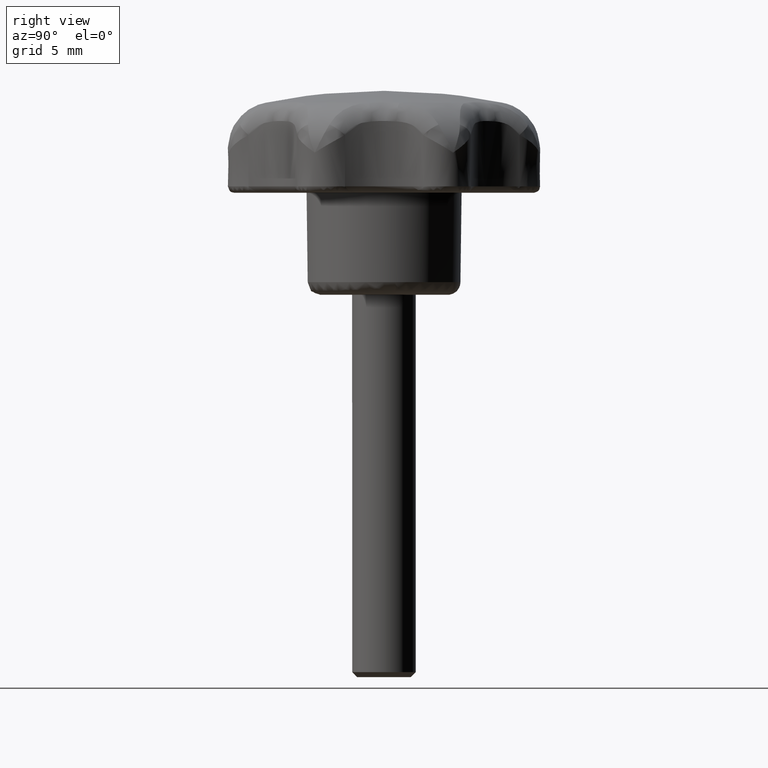
[diagram: clean part render]
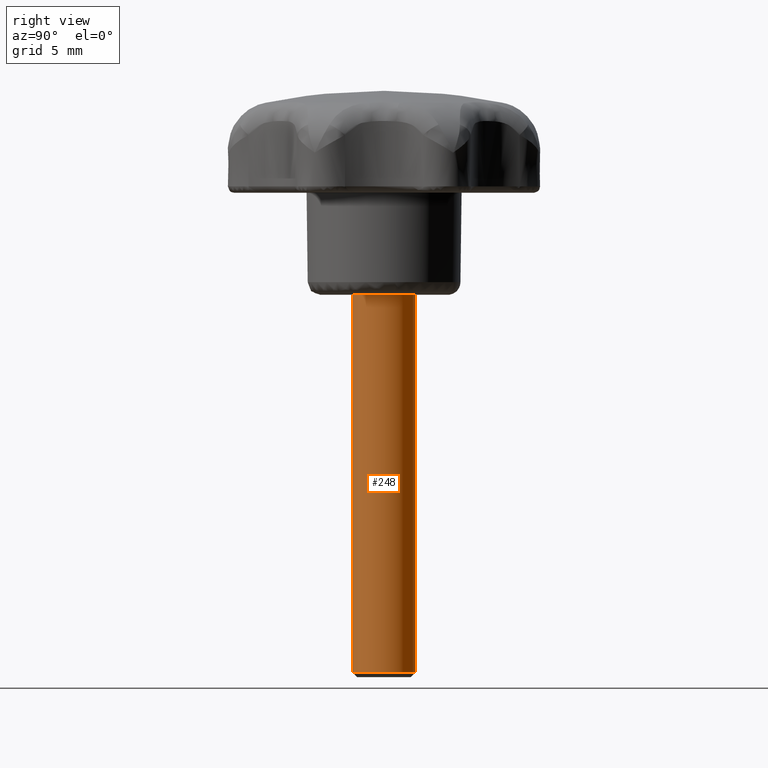
[diagram: same view with one face highlighted and labeled with its STEP entity id]
A machine part, right view. The second image highlights one B-rep face of the part: STEP entity #248.
In plain terms, the highlighted face is a freeform B-spline surface patch.
Its self-contained STEP definition (entity closure, byte-faithful):
#62=CARTESIAN_POINT('',(-0.285251661940060,-2.483672983579044,-29.600000000000001));
#63=VERTEX_POINT('',#62);
#79=CARTESIAN_POINT('',(-0.285251661869961,-2.483672983587095,1.065086E-015));
#80=VERTEX_POINT('',#79);
#81=CARTESIAN_POINT('',(-0.285251661869961,-2.483672983587095,1.065086E-015));
#82=CARTESIAN_POINT('',(-0.285251661940060,-2.483672983579044,-29.600000000000001));
#83=QUASI_UNIFORM_CURVE('',1,(#81,#82),.UNSPECIFIED.,.F.,.U.);
#84=EDGE_CURVE('',#80,#63,#83,.T.);
#101=CARTESIAN_POINT('',(-0.152621348851014,2.495336996053819,9.992007E-016));
#102=VERTEX_POINT('',#101);
#116=CARTESIAN_POINT('',(-0.174384544173516,2.493815165198688,-29.599999999987599));
#117=VERTEX_POINT('',#116);
#118=CARTESIAN_POINT('',(-0.152621348851014,2.495336996053819,9.992007E-016));
#119=CARTESIAN_POINT('',(-0.174384544173516,2.493815165198688,-29.599999999987599));
#120=QUASI_UNIFORM_CURVE('',1,(#118,#119),.UNSPECIFIED.,.F.,.U.);
#121=EDGE_CURVE('',#102,#117,#120,.T.);
#139=CARTESIAN_POINT('',(-0.211333953011323,2.491745979347514,0.740000000000000));
#140=CARTESIAN_POINT('',(-0.182121404711687,2.493532695342795,0.740000000000001));
#141=CARTESIAN_POINT('',(2.342715647217524,2.647958344891809,0.740000000000001));
#142=CARTESIAN_POINT('',(2.495336996054667,0.152621348837143,0.740000000000001));
#143=CARTESIAN_POINT('',(2.647958344891809,-2.342715647217524,0.740000000000001));
#144=CARTESIAN_POINT('',(0.152621348837143,-2.495336996054667,0.740000000000001));
#145=CARTESIAN_POINT('',(-0.066828045241367,-2.508759095986944,0.740000000000001));
#146=CARTESIAN_POINT('',(-0.305203193733537,-2.481381535534891,0.740000000000001));
#147=CARTESIAN_POINT('',(-0.325255889531770,-2.479078468730673,0.740000000000001));
#148=CARTESIAN_POINT('',(-0.211333953011323,2.491745979347514,-30.358499999999992));
#149=CARTESIAN_POINT('',(-0.182121404711687,2.493532695342795,-30.358500000000017));
#150=CARTESIAN_POINT('',(2.342715647217524,2.647958344891809,-30.358500000000006));
#151=CARTESIAN_POINT('',(2.495336996054667,0.152621348837143,-30.358500000000010));
#152=CARTESIAN_POINT('',(2.647958344891809,-2.342715647217524,-30.358500000000006));
#153=CARTESIAN_POINT('',(0.152621348837143,-2.495336996054667,-30.358500000000010));
#154=CARTESIAN_POINT('',(-0.066828045241367,-2.508759095986944,-30.358500000000003));
#155=CARTESIAN_POINT('',(-0.305203193733537,-2.481381535534891,-30.358500000000010));
#156=CARTESIAN_POINT('',(-0.325255889531770,-2.479078468730673,-30.358500000000010));
#164=(BOUNDED_SURFACE()B_SPLINE_SURFACE(2,1,((#139,#148),(#140,#149),(#141,#150),(#142,#151),(#143,#152),(#144,#153),(#145,#154),(#146,#155),(#147,#156)),.UNSPECIFIED.,.F.,.F.,.U.)B_SPLINE_SURFACE_WITH_KNOTS((3,1,2,2,1,3),(2,2),(0.0,0.069592886513969,4.211728510244918,8.353864133975868,8.850920408823583,8.894954837838011),(0.0,31.098500000000008),.UNSPECIFIED.)GEOMETRIC_REPRESENTATION_ITEM()RATIONAL_B_SPLINE_SURFACE(((1.009841920395275,1.009841920395275),(1.004920960197637,1.004920960197637),(0.707106781186548,0.707106781186548),(1.0,1.0),(0.707106781186548,0.707106781186548),(1.0,1.0),(0.964852813742386,0.964852813742386),(0.935774536891103,0.935774536891103),(0.933408121595608,0.933408121595608)))REPRESENTATION_ITEM('')SURFACE());
#165=CARTESIAN_POINT('',(0.196147739509889,-2.492293334342709,-29.599999999975211));
#166=VERTEX_POINT('',#165);
#167=CARTESIAN_POINT('',(0.196147739509888,-2.492293334342710,-29.599999999975214));
#168=CARTESIAN_POINT('',(0.098225267708378,-2.500000000000000,-29.599999999999998));
#169=CARTESIAN_POINT('',(0.0,-2.500000000000000,-29.600000000000001));
#170=CARTESIAN_POINT('',(-0.143093087653277,-2.500000000000000,-29.600000000000005));
#171=CARTESIAN_POINT('',(-0.285251661940060,-2.483672983579044,-29.599999999999994));
#179=(BOUNDED_CURVE()B_SPLINE_CURVE(2,(#167,#168,#169,#170,#171),.UNSPECIFIED.,.F.,.U.)B_SPLINE_CURVE_WITH_KNOTS((3,2,3),(0.736331300606859,0.750000000000000,0.769767755888761),.UNSPECIFIED.)CURVE()GEOMETRIC_REPRESENTATION_ITEM()RATIONAL_B_SPLINE_CURVE((0.969723356117749,0.983986122550998,1.0,0.976840633396089,0.957343736436694))REPRESENTATION_ITEM(''));
#180=EDGE_CURVE('',#166,#63,#179,.T.);
#181=ORIENTED_EDGE('',*,*,#180,.F.);
#182=CARTESIAN_POINT('',(2.500000000000000,0.0,-29.600000000000001));
#183=VERTEX_POINT('',#182);
#184=CARTESIAN_POINT('',(2.500000000000000,0.0,-29.600000000000001));
#185=CARTESIAN_POINT('',(2.500000000000000,-2.310976228795188,-29.600000000000009));
#186=CARTESIAN_POINT('',(0.196147739509889,-2.492293334342710,-29.599999999975207));
#194=(BOUNDED_CURVE()B_SPLINE_CURVE(2,(#184,#185,#186),.UNSPECIFIED.,.F.,.U.)B_SPLINE_CURVE_WITH_KNOTS((3,3),(0.500000000000000,0.736331300606860),.UNSPECIFIED.)CURVE()GEOMETRIC_REPRESENTATION_ITEM()RATIONAL_B_SPLINE_CURVE((1.0,0.723120658635548,0.969723356117750))REPRESENTATION_ITEM(''));
#195=EDGE_CURVE('',#183,#166,#194,.T.);
#196=ORIENTED_EDGE('',*,*,#195,.F.);
#197=CARTESIAN_POINT('',(-0.174384544173516,2.493815165198689,-29.599999999987602));
#198=CARTESIAN_POINT('',(-0.087295391613087,2.499906585708537,-29.599999999987801));
#199=CARTESIAN_POINT('',(0.000006416221786,2.499908243754431,-29.599999999988022));
#200=CARTESIAN_POINT('',(2.500003096081192,2.499955723976567,-29.599999999994218));
#201=CARTESIAN_POINT('',(2.500000000000000,0.0,-29.600000000000001));
#209=(BOUNDED_CURVE()B_SPLINE_CURVE(2,(#197,#198,#199,#200,#201),.UNSPECIFIED.,.F.,.U.)B_SPLINE_CURVE_WITH_KNOTS((3,2,3),(0.237829682990457,0.250000000000000,0.500000000000000),.UNSPECIFIED.)CURVE()GEOMETRIC_REPRESENTATION_ITEM()RATIONAL_B_SPLINE_CURVE((0.972871408695256,0.985741586708380,1.0,0.707106781186548,1.0))REPRESENTATION_ITEM(''));
#210=EDGE_CURVE('',#117,#183,#209,.T.);
#211=ORIENTED_EDGE('',*,*,#210,.F.);
#212=ORIENTED_EDGE('',*,*,#121,.F.);
#213=CARTESIAN_POINT('',(2.500000000000000,0.0,0.0));
#214=VERTEX_POINT('',#213);
#215=CARTESIAN_POINT('',(-0.152621348851014,2.495336996053819,9.992007E-016));
#216=CARTESIAN_POINT('',(-0.076381908260382,2.500000000000000,0.0));
#217=CARTESIAN_POINT('',(0.0,2.500000000000000,0.0));
#218=CARTESIAN_POINT('',(2.500000000000000,2.500000000000000,0.0));
#219=CARTESIAN_POINT('',(2.500000000000000,0.0,0.0));
#227=(BOUNDED_CURVE()B_SPLINE_CURVE(2,(#215,#216,#217,#218,#219),.UNSPECIFIED.,.F.,.U.)B_SPLINE_CURVE_WITH_KNOTS((3,2,3),(0.739332962240050,0.750000000000000,1.0),.UNSPECIFIED.)CURVE()GEOMETRIC_REPRESENTATION_ITEM()RATIONAL_B_SPLINE_CURVE((0.976072041669090,0.987502787901134,1.0,0.707106781186548,1.0))REPRESENTATION_ITEM(''));
#228=EDGE_CURVE('',#102,#214,#227,.T.);
#229=ORIENTED_EDGE('',*,*,#228,.T.);
#230=CARTESIAN_POINT('',(2.500000000000000,0.0,0.0));
#231=CARTESIAN_POINT('',(2.500000000000000,-2.500000000000000,0.0));
#232=CARTESIAN_POINT('',(0.0,-2.500000000000000,0.0));
#233=CARTESIAN_POINT('',(-0.143093087582480,-2.500000000000000,0.0));
#234=CARTESIAN_POINT('',(-0.285251661869961,-2.483672983587095,1.065086E-015));
#242=(BOUNDED_CURVE()B_SPLINE_CURVE(2,(#230,#231,#232,#233,#234),.UNSPECIFIED.,.F.,.U.)B_SPLINE_CURVE_WITH_KNOTS((3,2,3),(0.0,0.250000000000000,0.269767755879207),.UNSPECIFIED.)CURVE()GEOMETRIC_REPRESENTATION_ITEM()RATIONAL_B_SPLINE_CURVE((1.0,0.707106781186548,1.0,0.976840633407282,0.957343736455540))REPRESENTATION_ITEM(''));
#243=EDGE_CURVE('',#214,#80,#242,.T.);
#244=ORIENTED_EDGE('',*,*,#243,.T.);
#245=ORIENTED_EDGE('',*,*,#84,.T.);
#246=EDGE_LOOP('',(#181,#196,#211,#212,#229,#244,#245));
#247=FACE_OUTER_BOUND('',#246,.T.);
#248=ADVANCED_FACE('',(#247),#164,.T.);